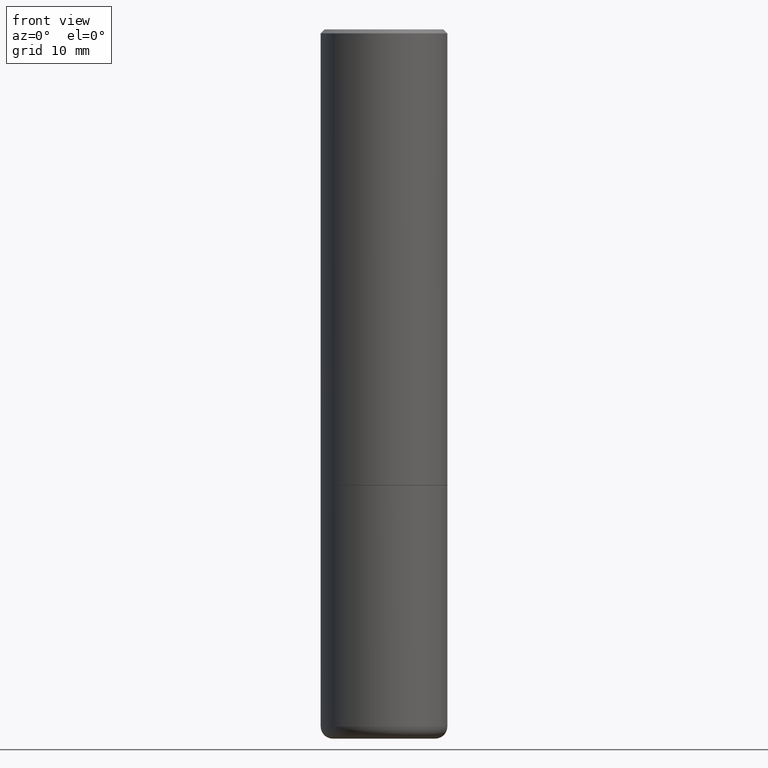
[diagram: clean part render]
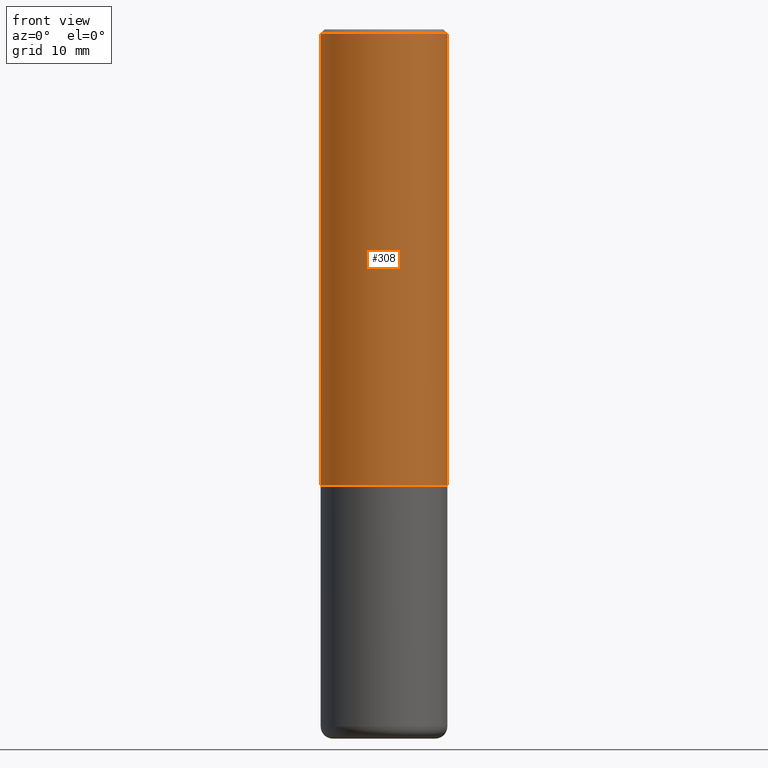
[diagram: same view with one face highlighted and labeled with its STEP entity id]
A machine part, front view. The second image highlights one B-rep face of the part: STEP entity #308.
In plain terms, the highlighted cylindrical surface (partial cylindrical patch) has radius 7.9375 mm, axis along (-0, 0, 1).
Its self-contained STEP definition (entity closure, byte-faithful):
#7 = DIRECTION ( 'NONE',  ( 1.000000000000000000, -6.982962677686266711E-15, 0.000000000000000000 ) ) ;
#11 = ORIENTED_EDGE ( 'NONE', *, *, #312, .F. ) ;
#31 = DIRECTION ( 'NONE',  ( 1.000000000000000000, -6.982962677686266711E-15, 4.876176775795935232E-29 ) ) ;
#32 = CIRCLE ( 'NONE', #241, 0.3125000000000002220 ) ;
#37 = VERTEX_POINT ( 'NONE', #345 ) ;
#52 = DIRECTION ( 'NONE',  ( 1.000000000000000000, -6.982962677686266711E-15, 0.000000000000000000 ) ) ;
#55 = CARTESIAN_POINT ( 'NONE',  ( 4.890937612370297681E-31, -6.982962677686324889E-17, -0.02000000000000009756 ) ) ;
#65 = EDGE_CURVE ( 'NONE', #392, #228, #32, .T. ) ;
#105 = CARTESIAN_POINT ( 'NONE',  ( 5.499859345110371740E-29, -7.852341531058233864E-15, -2.248999999999999666 ) ) ;
#112 = CYLINDRICAL_SURFACE ( 'NONE', #382, 0.3125000000000001665 ) ;
#141 = CARTESIAN_POINT ( 'NONE',  ( 0.000000000000000000, 0.000000000000000000, 0.000000000000000000 ) ) ;
#142 = EDGE_CURVE ( 'NONE', #228, #201, #226, .T. ) ;
#156 = LINE ( 'NONE', #287, #270 ) ;
#169 = CIRCLE ( 'NONE', #229, 0.3125000000000000555 ) ;
#174 = ORIENTED_EDGE ( 'NONE', *, *, #142, .T. ) ;
#178 = EDGE_CURVE ( 'NONE', #392, #37, #156, .T. ) ;
#185 = ORIENTED_EDGE ( 'NONE', *, *, #65, .T. ) ;
#201 = VERTEX_POINT ( 'NONE', #271 ) ;
#206 = ORIENTED_EDGE ( 'NONE', *, *, #178, .F. ) ;
#226 = LINE ( 'NONE', #321, #289 ) ;
#228 = VERTEX_POINT ( 'NONE', #255 ) ;
#229 = AXIS2_PLACEMENT_3D ( 'NONE', #55, #257, #52 ) ;
#238 = DIRECTION ( 'NONE',  ( -2.445468806185136597E-29, 3.491481338843145583E-15, 1.000000000000000000 ) ) ;
#241 = AXIS2_PLACEMENT_3D ( 'NONE', #105, #238, #7 ) ;
#252 = DIRECTION ( 'NONE',  ( -2.445468806185136877E-29, 3.491481338843145188E-15, 1.000000000000000000 ) ) ;
#255 = CARTESIAN_POINT ( 'NONE',  ( 0.3125000000000002220, -1.003451736783519379E-14, -2.248999999999999666 ) ) ;
#257 = DIRECTION ( 'NONE',  ( -2.445468806185136597E-29, 3.491481338843145583E-15, 1.000000000000000000 ) ) ;
#270 = VECTOR ( 'NONE', #252, 39.37007874015748143 ) ;
#271 = CARTESIAN_POINT ( 'NONE',  ( 0.3125000000000000555, -2.213735251080467306E-15, -0.02000000000000009756 ) ) ;
#272 = DIRECTION ( 'NONE',  ( -2.445468806185136597E-29, 3.491481338843145583E-15, 1.000000000000000000 ) ) ;
#287 = CARTESIAN_POINT ( 'NONE',  ( -0.3125000000000001665, 2.220446049250314264E-15, -1.537167215704658792E-29 ) ) ;
#289 = VECTOR ( 'NONE', #294, 39.37007874015748143 ) ;
#294 = DIRECTION ( 'NONE',  ( -2.445468806185136877E-29, 3.491481338843145188E-15, 1.000000000000000000 ) ) ;
#308 = ADVANCED_FACE ( 'NONE', ( #404 ), #112, .T. ) ;
#312 = EDGE_CURVE ( 'NONE', #37, #201, #169, .T. ) ;
#321 = CARTESIAN_POINT ( 'NONE',  ( 0.3125000000000001665, -2.182175836776959530E-15, 1.523805242436230636E-29 ) ) ;
#345 = CARTESIAN_POINT ( 'NONE',  ( -0.3125000000000000555, 2.112346210000095443E-15, -0.02000000000000009756 ) ) ;
#349 = EDGE_LOOP ( 'NONE', ( #206, #185, #174, #11 ) ) ;
#382 = AXIS2_PLACEMENT_3D ( 'NONE', #141, #272, #31 ) ;
#392 = VERTEX_POINT ( 'NONE', #412 ) ;
#404 = FACE_OUTER_BOUND ( 'NONE', #349, .T. ) ;
#412 = CARTESIAN_POINT ( 'NONE',  ( -0.3125000000000002220, -1.740639529667233725E-15, -2.248999999999999666 ) ) ;